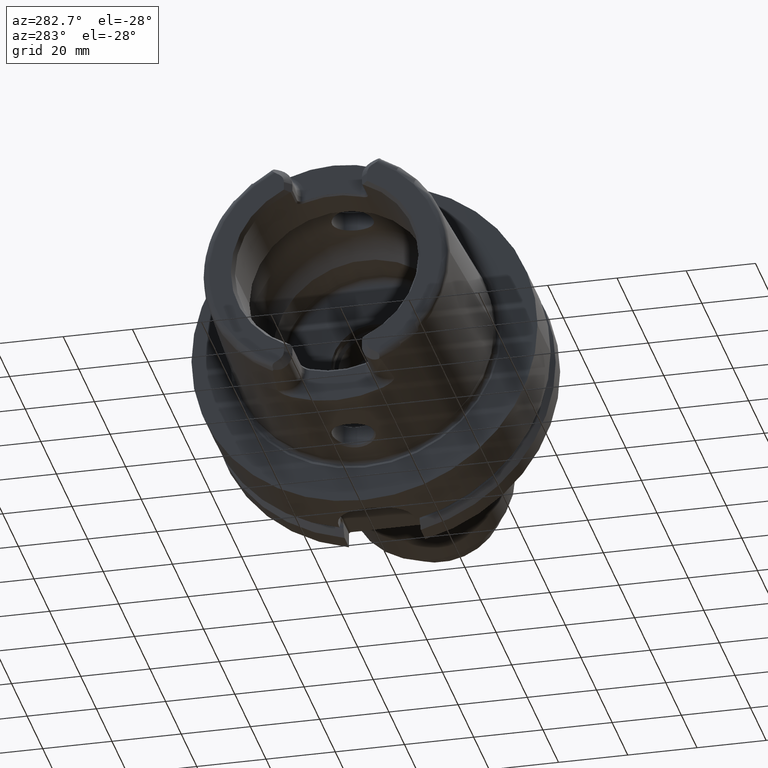
[diagram: clean part render]
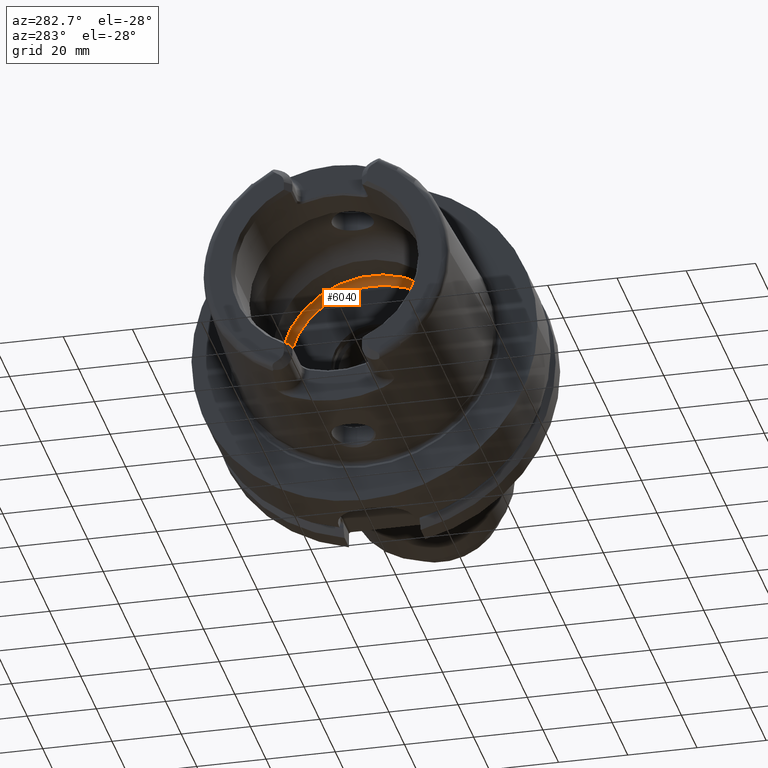
[diagram: same view with one face highlighted and labeled with its STEP entity id]
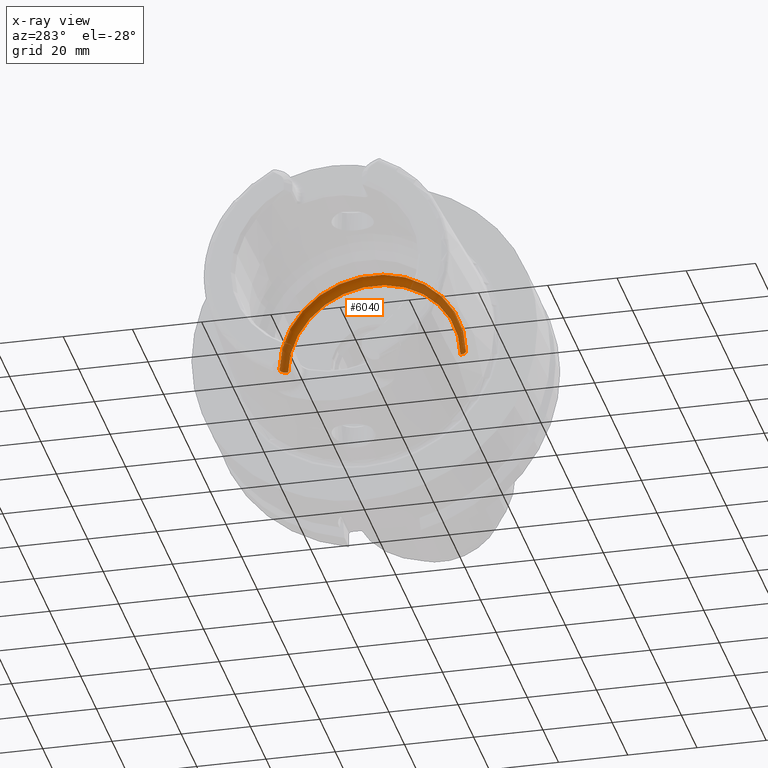
[diagram: x-ray of the same camera — body ghosted, the highlighted face saturated]
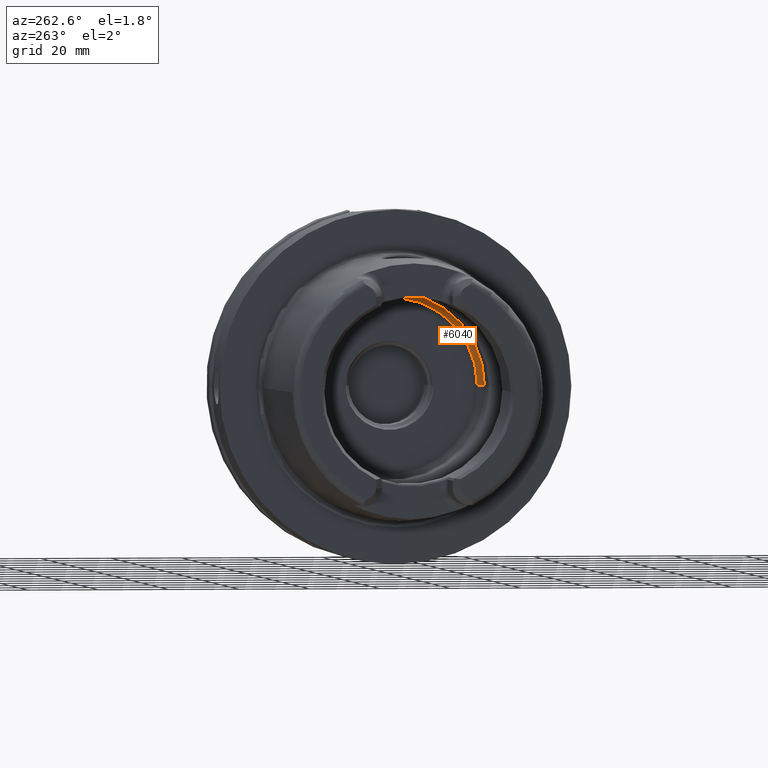
[diagram: same view with one face highlighted and labeled with its STEP entity id]
A machine part, auxiliary view. The second image highlights one B-rep face of the part: STEP entity #6040.
The next image is the same camera in x-ray: the body ghosted, the highlighted face saturated — about 38% of this face is hidden behind the body in this view.
A second angle (auxiliary view) of the same face is appended — the face is thin or edge-on in the first view.
In plain terms, the highlighted toroidal blend (fillet) surface has major radius 24.9 mm and minor (blend) radius 2 mm.
Its self-contained STEP definition (entity closure, byte-faithful):
#2417=CARTESIAN_POINT('',(9.3E0,0.E0,0.E0));
#2418=DIRECTION('',(1.E0,0.E0,0.E0));
#2419=DIRECTION('',(0.E0,1.E0,0.E0));
#2420=AXIS2_PLACEMENT_3D('',#2417,#2418,#2419);
#2422=CARTESIAN_POINT('',(1.25E1,0.E0,0.E0));
#2423=DIRECTION('',(1.E0,0.E0,0.E0));
#2424=DIRECTION('',(0.E0,1.E0,0.E0));
#2425=AXIS2_PLACEMENT_3D('',#2422,#2423,#2424);
#2427=CARTESIAN_POINT('',(1.05E1,2.49E1,0.E0));
#2428=DIRECTION('',(0.E0,0.E0,1.E0));
#2429=DIRECTION('',(1.E0,0.E0,0.E0));
#2430=AXIS2_PLACEMENT_3D('',#2427,#2428,#2429);
#2437=CARTESIAN_POINT('',(1.05E1,-2.49E1,0.E0));
#2438=DIRECTION('',(0.E0,0.E0,-1.E0));
#2439=DIRECTION('',(1.E0,0.E0,0.E0));
#2440=AXIS2_PLACEMENT_3D('',#2437,#2438,#2439);
#2887=CARTESIAN_POINT('',(1.25E1,2.49E1,0.E0));
#2888=CARTESIAN_POINT('',(9.3E0,2.65E1,0.E0));
#2889=VERTEX_POINT('',#2887);
#2890=VERTEX_POINT('',#2888);
#2891=CARTESIAN_POINT('',(1.25E1,-2.49E1,0.E0));
#2892=CARTESIAN_POINT('',(9.3E0,-2.65E1,0.E0));
#2893=VERTEX_POINT('',#2891);
#2894=VERTEX_POINT('',#2892);
#6026=CARTESIAN_POINT('',(1.05E1,0.E0,0.E0));
#6027=DIRECTION('',(1.E0,0.E0,0.E0));
#6028=DIRECTION('',(0.E0,-1.E0,0.E0));
#6029=AXIS2_PLACEMENT_3D('',#6026,#6027,#6028);
#6030=TOROIDAL_SURFACE('',#6029,2.49E1,2.E0);
#6032=ORIENTED_EDGE('',*,*,#6031,.T.);
#6033=ORIENTED_EDGE('',*,*,#6021,.T.);
#6035=ORIENTED_EDGE('',*,*,#6034,.F.);
#6037=ORIENTED_EDGE('',*,*,#6036,.F.);
#6038=EDGE_LOOP('',(#6032,#6033,#6035,#6037));
#6039=FACE_OUTER_BOUND('',#6038,.F.);
#6040=ADVANCED_FACE('',(#6039),#6030,.F.);
#2421=CIRCLE('',#2420,2.65E1);
#2426=CIRCLE('',#2425,2.49E1);
#2431=CIRCLE('',#2430,2.E0);
#2441=CIRCLE('',#2440,2.E0);
#6021=EDGE_CURVE('',#2890,#2894,#2421,.T.);
#6031=EDGE_CURVE('',#2889,#2890,#2431,.T.);
#6034=EDGE_CURVE('',#2893,#2894,#2441,.T.);
#6036=EDGE_CURVE('',#2889,#2893,#2426,.T.);